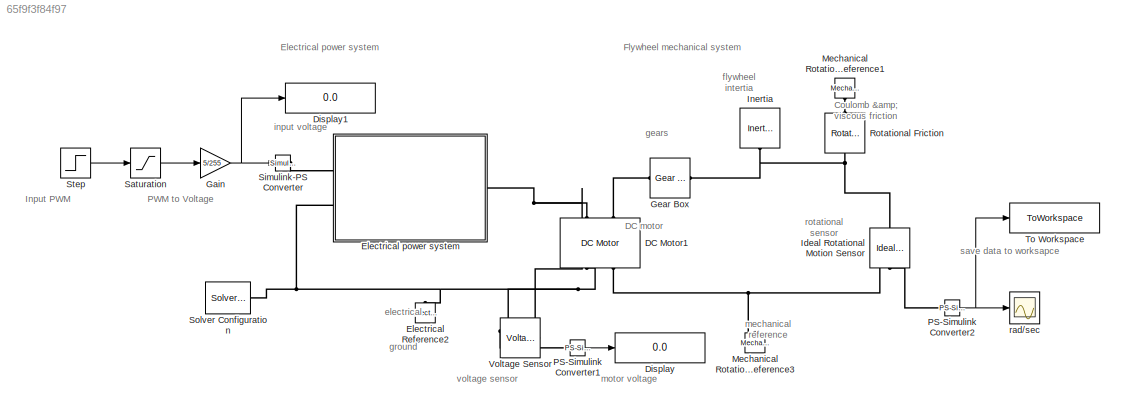
MODEL slx_65f9f3f84f97
KIND model
CONFIG AbsTol = 1e-3
CONFIG EnableMultiTasking = off
CONFIG FixedStep = 0.01
CONFIG MaxStep = auto
CONFIG MinStep = auto
CONFIG RelTol = 1e-3
CONFIG SampleTimeConstraint = Unconstrained
CONFIG SolverName = FixedStepAuto
CONFIG StartTime = 0.0
CONFIG StopTime = 2.5
BLOCK [Reference] DC Motor1  REF=ee_lib/Electromechanical/Brushed Motors/DC Motor
  NameLocation = right
  Ports = [0, 0, 0, 0, 0, 2, 2]
  SourceBlock = ee_lib/Electromechanical/Brushed Motors/DC Motor
  SourceProductBaseCode = PS
  SourceType = DC Motor
BLOCK [Display] Display
  Decimation = 1
  Ports = [1]
BLOCK [Display] Display1
  Decimation = 1
  Ports = [1]
BLOCK [Reference] Electrical Reference2  REF=fl_lib/Electrical/Electrical Elements/Electrical Reference
  NameLocation = right
  Ports = [0, 0, 0, 0, 0, 1]
  SourceBlock = fl_lib/Electrical/Electrical Elements/Electrical Reference
  SourceProductBaseCode = SS
  SourceType = Electrical Reference
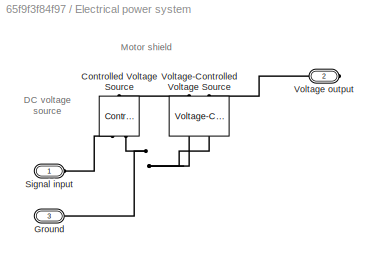
BLOCK [SubSystem] Electrical power system
  Ports = [0, 0, 0, 0, 0, 2, 1]
  RequestExecContextInheritance = off
BLOCK [Reference] Electrical power system/Controlled Voltage Source  REF=fl_lib/Electrical/Electrical Sources/Controlled Voltage
Source
  NameLocation = right
  Ports = [0, 0, 0, 0, 0, 1, 2]
  SourceBlock = fl_lib/Electrical/Electrical Sources/Controlled Voltage\nSource
  SourceProductBaseCode = SS
  SourceType = Controlled Voltage\nSource
BLOCK [PMIOPort] Electrical power system/Ground
  Port = 3
  Side = Left
BLOCK [PMIOPort] Electrical power system/Signal input
  Side = Left
BLOCK [PMIOPort] Electrical power system/Voltage output
  Port = 2
  Side = Right
BLOCK [Reference] Electrical power system/Voltage-Controlled Voltage Source  REF=fl_lib/Electrical/Electrical Sources/Voltage-Controlled
Voltage Source
  NameLocation = right
  Ports = [0, 0, 0, 0, 0, 2, 2]
  SourceBlock = fl_lib/Electrical/Electrical Sources/Voltage-Controlled\nVoltage Source
  SourceProductBaseCode = SS
  SourceType = Voltage-Controlled\nVoltage Source
BLOCK [Gain] Gain
  Gain = 5/255
BLOCK [Reference] Gear Box  REF=fl_lib/Mechanical/Mechanisms/Gear Box
  Ports = [0, 0, 0, 0, 0, 1, 1]
  SourceBlock = fl_lib/Mechanical/Mechanisms/Gear Box
  SourceProductBaseCode = SS
  SourceType = Gear Box
BLOCK [Reference] Ideal Rotational Motion Sensor  REF=fl_lib/Mechanical/Mechanical Sensors/Ideal Rotational
Motion Sensor
  NameLocation = left
  Ports = [0, 0, 0, 0, 0, 1, 3]
  SourceBlock = fl_lib/Mechanical/Mechanical Sensors/Ideal Rotational\nMotion Sensor
  SourceProductBaseCode = SS
  SourceType = Ideal Rotational\nMotion Sensor
BLOCK [Reference] Inertia  REF=fl_lib/Mechanical/Rotational Elements/Inertia
  NameLocation = left
  Ports = [0, 0, 0, 0, 0, 1]
  SourceBlock = fl_lib/Mechanical/Rotational Elements/Inertia
  SourceProductBaseCode = SS
  SourceType = Inertia
BLOCK [Reference] Mechanical Rotational Reference1  REF=fl_lib/Mechanical/Rotational Elements/Mechanical
Rotational Reference
  NameLocation = left
  Ports = [0, 0, 0, 0, 0, 1]
  SourceBlock = fl_lib/Mechanical/Rotational Elements/Mechanical\nRotational Reference
  SourceProductBaseCode = SS
  SourceType = Mechanical\nRotational Reference
BLOCK [Reference] Mechanical Rotational Reference3  REF=fl_lib/Mechanical/Rotational Elements/Mechanical
Rotational Reference
  NameLocation = right
  Ports = [0, 0, 0, 0, 0, 1]
  SourceBlock = fl_lib/Mechanical/Rotational Elements/Mechanical\nRotational Reference
  SourceProductBaseCode = SS
  SourceType = Mechanical\nRotational Reference
BLOCK [Reference] PS-Simulink Converter1  REF=nesl_utility/PS-Simulink
Converter
  Ports = [0, 1, 0, 0, 0, 1]
  SourceBlock = nesl_utility/PS-Simulink\nConverter
  SourceProductBaseCode = PW,SS
  SourceType = PS-Simulink\nConverter
BLOCK [Reference] PS-Simulink Converter2  REF=nesl_utility/PS-Simulink
Converter
  Ports = [0, 1, 0, 0, 0, 1]
  SourceBlock = nesl_utility/PS-Simulink\nConverter
  SourceProductBaseCode = PW,SS
  SourceType = PS-Simulink\nConverter
BLOCK [Reference] Rotational Friction  REF=fl_lib/Mechanical/Rotational Elements/Rotational Friction
  NameLocation = left
  Ports = [0, 0, 0, 0, 0, 1, 1]
  SourceBlock = fl_lib/Mechanical/Rotational Elements/Rotational Friction
  SourceProductBaseCode = SS
  SourceType = Rotational Friction
BLOCK [Saturate] Saturation
  LowerLimit = -255
  UpperLimit = 255
BLOCK [Reference] Simulink-PS Converter  REF=nesl_utility/Simulink-PS
Converter
  Ports = [1, 0, 0, 0, 0, 0, 1]
  SourceBlock = nesl_utility/Simulink-PS\nConverter
  SourceProductBaseCode = PW,SS
  SourceType = Simulink-PS\nConverter
BLOCK [Reference] Solver Configuration  REF=nesl_utility/Solver
Configuration
  Ports = [0, 0, 0, 0, 0, 0, 1]
  SourceBlock = nesl_utility/Solver\nConfiguration
  SourceProductBaseCode = PW,SS
  SourceType = Solver\nConfiguration
BLOCK [Step] Step
  After = 150
  SampleTime = 0
  Time = 0
BLOCK [ToWorkspace] To Workspace
  FixptAsFi = on
  MaxDataPoints = inf
  Ports = [1]
  SampleTime = -1
  SaveFormat = Timeseries
  VariableName = ang_vel
BLOCK [Reference] Voltage Sensor  REF=fl_lib/Electrical/Electrical Sensors/Voltage Sensor
  NameLocation = top
  Ports = [0, 0, 0, 0, 0, 1, 2]
  SourceBlock = fl_lib/Electrical/Electrical Sensors/Voltage Sensor
  SourceProductBaseCode = SS
  SourceType = Voltage Sensor
BLOCK [Scope] rad//sec
  Floating = off
  NumInputPorts = 1
  Ports = [1]
  ScopeSpecificationString = Simulink.scopes.TimeScopeBlockCfg('CurrentConfiguration', extmgr.ConfigurationSet(extmgr.Configuration('Core','General UI',true,'FigureColor',[0 0 0]),extmgr.Configuration('Core','Source UI',true),extmgr.Configuration('Sources','WiredSimulink',true,'DataLoggingVariableName','ScopeData1'),extmgr.Configuration('Visuals','Time Domain',true,'SerializedDisplays',{struct('MinYLimReal','-2.9978','MaxYLim...<+1895ch>
ANNOTATION (root): Coulomb & viscous friction
ANNOTATION (root): input voltage
ANNOTATION (root): motor voltage
ANNOTATION (root): save data to worksapce
ANNOTATION (root): voltage sensor
ANNOTATION (root): Electrical power system
ANNOTATION (root): Flywheel mechanical system
ANNOTATION (root): electrical ground
ANNOTATION (root): gears
ANNOTATION (root): mechanical reference
ANNOTATION (root): flywheel intertia
ANNOTATION (root): DC motor
ANNOTATION (root): Input PWM
ANNOTATION (root): PWM to Voltage
ANNOTATION (root): rotational sensor
ANNOTATION Electrical power system: Motor shield
ANNOTATION Electrical power system: DC voltage source
NET Gain:1 -> Display1:1, Simulink-PS Converter:1
LINE PS-Simulink Converter1:1 -> Display:1
NET PS-Simulink Converter2:1 -> To Workspace:1, rad//sec:1
LINE Saturation:1 -> Gain:1
LINE Step:1 -> Saturation:1
PNET net1: DC Motor1:LConn1 -- Electrical power system:RConn1 -- Voltage Sensor:LConn1
PLINE DC Motor1:LConn2 -- Gear Box:LConn1
PNET net2: DC Motor1:RConn1 -- Electrical Reference2:LConn1 -- Electrical power system:LConn2 -- Solver Configuration:RConn1 -- Voltage Sensor:RConn2
PNET net3: DC Motor1:RConn2 -- Ideal Rotational Motion Sensor:RConn1 -- Mechanical Rotational Reference3:LConn1
PLINE Electrical power system/Controlled Voltage Source:LConn1 -- Electrical power system/Voltage-Controlled Voltage Source:LConn1
PLINE Electrical power system/Controlled Voltage Source:RConn1 -- Electrical power system/Signal input:RConn1
PNET net4: Electrical power system/Controlled Voltage Source:RConn2 -- Electrical power system/Ground:RConn1 -- Electrical power system/Voltage-Controlled Voltage Source:RConn1 -- Electrical power system/Voltage-Controlled Voltage Source:RConn2
PLINE Electrical power system/Voltage output:RConn1 -- Electrical power system/Voltage-Controlled Voltage Source:LConn2
PLINE Electrical power system:LConn1 -- Simulink-PS Converter:RConn1
PNET net5: Gear Box:RConn1 -- Ideal Rotational Motion Sensor:LConn1 -- Inertia:LConn1 -- Rotational Friction:RConn1
PLINE Ideal Rotational Motion Sensor:RConn2 -- PS-Simulink Converter2:LConn1
PLINE Mechanical Rotational Reference1:LConn1 -- Rotational Friction:LConn1
PLINE PS-Simulink Converter1:LConn1 -- Voltage Sensor:RConn1
note: NET lines group one-source signal fan-out (src -> all destinations, sorted); 1:1 wires keep LINE; PNET lines group multi-terminal physical nets as a canonical sorted terminal list (undirected conserving connections); 2-terminal nets keep the pairwise PLINE form
